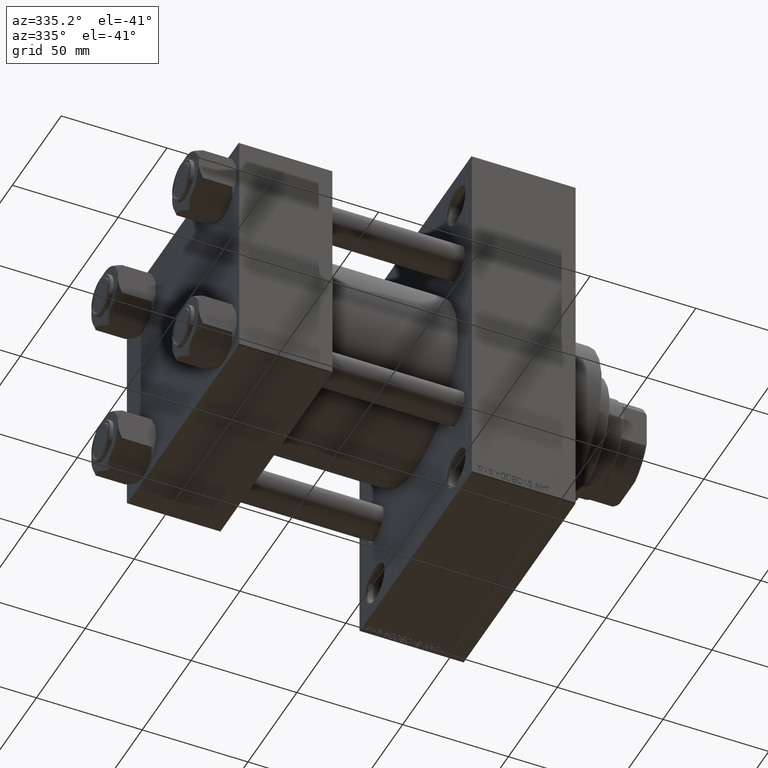
[diagram: clean part render]
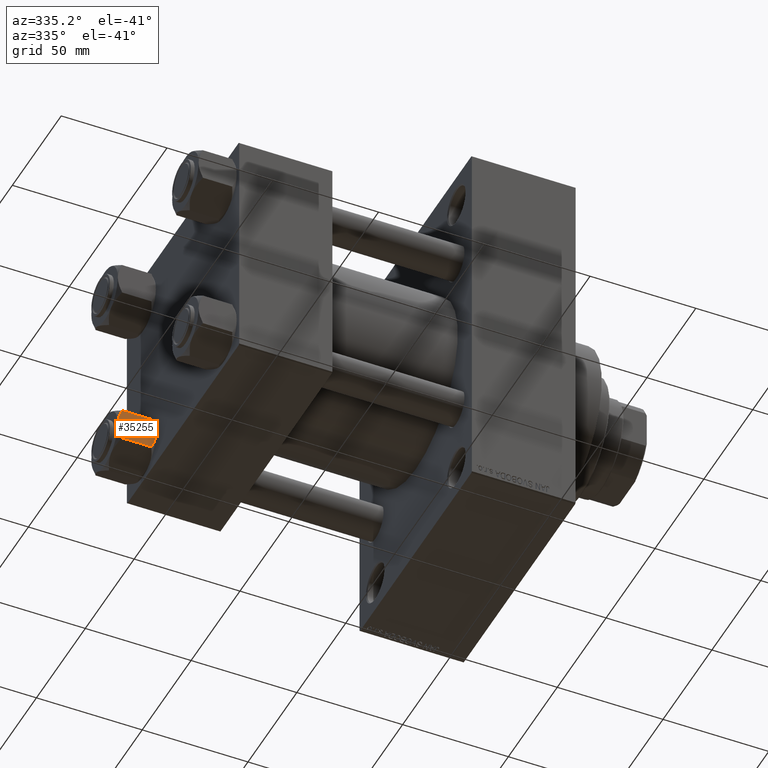
[diagram: same view with one face highlighted and labeled with its STEP entity id]
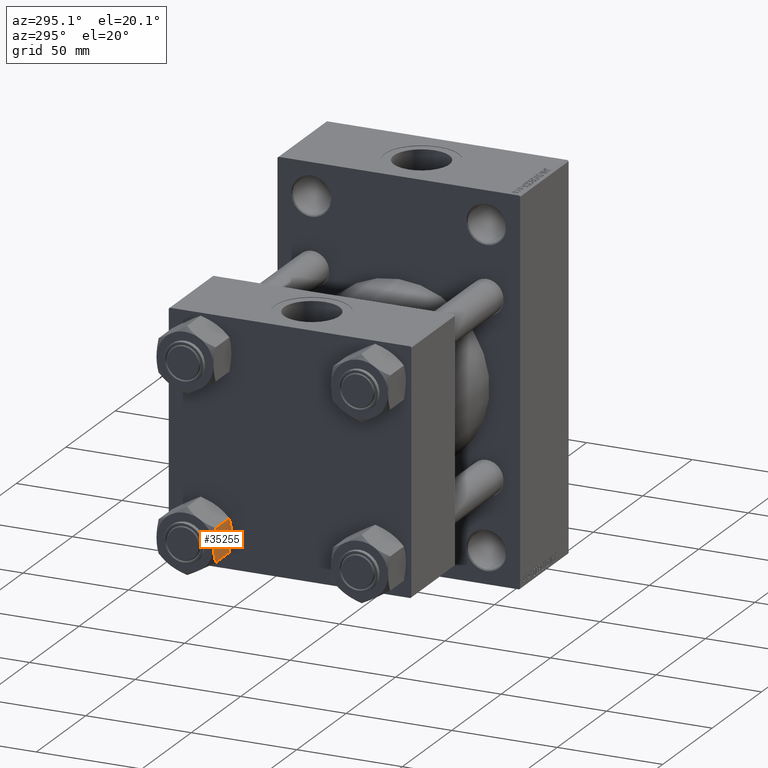
[diagram: same view with one face highlighted and labeled with its STEP entity id]
A machine part, auxiliary view. The second image highlights one B-rep face of the part: STEP entity #35255.
A second angle (auxiliary view) of the same face is appended — the face is thin or edge-on in the first view.
In plain terms, the highlighted planar face has unit normal (0, 1, 0).
Its self-contained STEP definition (entity closure, byte-faithful):
#437 = B_SPLINE_CURVE_WITH_KNOTS ( 'NONE', 3,
 ( #26120, #15482, #41312, #15258, #22494, #37213, #30214, #22986, #570, #33607, #32889, #43952 ),
 .UNSPECIFIED., .F., .F.,
 ( 4, 2, 2, 2, 2, 4 ),
 ( 0.02774433486126548498, 0.02873404020403552694, 0.02972374554680556544, 0.03170315623234564589, 0.03368256691788572288, 0.03566197760342580680 ),
 .UNSPECIFIED. ) ;
#534 = DIRECTION ( 'NONE',  ( 1.000000000000000000, 1.110578409716264860E-16, -0.000000000000000000 ) ) ;
#570 = CARTESIAN_POINT ( 'NONE',  ( -5.184073258379408244, -13.52731680711293194, -17.05185620934992130 ) ) ;
#822 = CARTESIAN_POINT ( 'NONE',  ( 6.422751913021838455, -13.52731680711293194, -1.436509110925895838 ) ) ;
#1526 = VERTEX_POINT ( 'NONE', #18166 ) ;
#1959 = ORIENTED_EDGE ( 'NONE', *, *, #11905, .F. ) ;
#2034 = EDGE_CURVE ( 'NONE', #28618, #33256, #31121, .T. ) ;
#2936 = B_SPLINE_CURVE_WITH_KNOTS ( 'NONE', 3,
 ( #3874, #14970, #44152, #29698, #18351, #25834, #28974, #43677 ),
 .UNSPECIFIED., .F., .F.,
 ( 4, 2, 2, 4 ),
 ( 0.01980594295952730483, 0.02179054093496184813, 0.02377513891039639490, 0.02774433486126548498 ),
 .UNSPECIFIED. ) ;
#3053 = CARTESIAN_POINT ( 'NONE',  ( 3.287826776903164827, -13.52731680711293016, -0.3804584453753316331 ) ) ;
#3274 = CARTESIAN_POINT ( 'NONE',  ( 7.810000000000007603, -13.52731680711293016, -16.00000000000000000 ) ) ;
#3413 = CARTESIAN_POINT ( 'NONE',  ( -7.030888348548076650, -13.52731680711293549, -1.709337883550297255 ) ) ;
#3652 = CARTESIAN_POINT ( 'NONE',  ( -5.189513245496340410, -13.52731680711292839, -0.9501108431732551152 ) ) ;
#3874 = CARTESIAN_POINT ( 'NONE',  ( 7.622943475354659881, -13.52731680711293194, -16.00000000000000000 ) ) ;
#3881 = CARTESIAN_POINT ( 'NONE',  ( -4.553769687922313736, -13.52731680711293194, -0.7327291995145115422 ) ) ;
#3946 = CARTESIAN_POINT ( 'NONE',  ( 7.622943475354659881, -13.52731680711293194, -2.000000000000000000 ) ) ;
#4436 = CARTESIAN_POINT ( 'NONE',  ( 5.184073258379416238, -13.52731680711293016, -0.9481437906500799206 ) ) ;
#4664 = VERTEX_POINT ( 'NONE', #42831 ) ;
#4914 = EDGE_CURVE ( 'NONE', #14597, #28618, #437, .T. ) ;
#5426 = VERTEX_POINT ( 'NONE', #16623 ) ;
#6681 = CARTESIAN_POINT ( 'NONE',  ( 1.502314598737159031E-15, -13.52731680711294082, 0.000000000000000000 ) ) ;
#6852 = CARTESIAN_POINT ( 'NONE',  ( 7.810000000000007603, -13.52731680711293016, -16.00000000000000000 ) ) ;
#7967 = DIRECTION ( 'NONE',  ( -0.000000000000000000, -0.000000000000000000, 1.000000000000000000 ) ) ;
#8015 = EDGE_CURVE ( 'NONE', #21444, #4664, #43386, .T. ) ;
#8050 = CARTESIAN_POINT ( 'NONE',  ( 1.663410456966175399, -13.52731680711292839, -0.09804949135698279306 ) ) ;
#11905 = EDGE_CURVE ( 'NONE', #5426, #27530, #12998, .T. ) ;
#12956 = ORIENTED_EDGE ( 'NONE', *, *, #4914, .F. ) ;
#12982 = CARTESIAN_POINT ( 'NONE',  ( 0.6693083573771220207, -13.52731680711293194, -0.01249333081107303380 ) ) ;
#12998 = B_SPLINE_CURVE_WITH_KNOTS ( 'NONE', 3,
 ( #36930, #3413, #47535, #3652, #3881, #28738, #43444, #18120 ),
 .UNSPECIFIED., .F., .F.,
 ( 4, 2, 2, 4 ),
 ( 0.01980594295952729789, 0.02179054093496184119, 0.02377513891039638450, 0.02774433486126547804 ),
 .UNSPECIFIED. ) ;
#13730 = ORIENTED_EDGE ( 'NONE', *, *, #17465, .F. ) ;
#14473 = DIRECTION ( 'NONE',  ( 1.000000000000000000, 1.110578409716264860E-16, -0.000000000000000000 ) ) ;
#14597 = VERTEX_POINT ( 'NONE', #28361 ) ;
#14911 = VECTOR ( 'NONE', #32236, 1000.000000000000000 ) ;
#14970 = CARTESIAN_POINT ( 'NONE',  ( 7.030888348548073097, -13.52731680711292661, -16.29066211644969897 ) ) ;
#15028 = ORIENTED_EDGE ( 'NONE', *, *, #16107, .F. ) ;
#15258 = CARTESIAN_POINT ( 'NONE',  ( -1.333889873825133909, -13.52731680711293016, -17.93843358996561221 ) ) ;
#15482 = CARTESIAN_POINT ( 'NONE',  ( -0.3330234424833800611, -13.52731680711293016, -18.00000000000001066 ) ) ;
#15751 = CARTESIAN_POINT ( 'NONE',  ( 4.557734399832427563, -13.52731680711293016, -0.7341470174115107827 ) ) ;
#16107 = EDGE_CURVE ( 'NONE', #1526, #14597, #2936, .T. ) ;
#16366 = VECTOR ( 'NONE', #14473, 1000.000000000000000 ) ;
#16623 = CARTESIAN_POINT ( 'NONE',  ( -7.622943475354656329, -13.52731680711293194, -2.000000000000000000 ) ) ;
#16815 = ORIENTED_EDGE ( 'NONE', *, *, #8015, .T. ) ;
#17465 = EDGE_CURVE ( 'NONE', #27530, #34381, #19605, .T. ) ;
#18120 = CARTESIAN_POINT ( 'NONE',  ( 1.502314598737159031E-15, -13.52731680711294082, 0.000000000000000000 ) ) ;
#18166 = CARTESIAN_POINT ( 'NONE',  ( 7.622943475354659881, -13.52731680711293194, -16.00000000000000000 ) ) ;
#18351 = CARTESIAN_POINT ( 'NONE',  ( 4.553769687922315512, -13.52731680711292839, -17.26727080048548757 ) ) ;
#19605 = B_SPLINE_CURVE_WITH_KNOTS ( 'NONE', 3,
 ( #6681, #31318, #12982, #42392, #8050, #41568, #3053, #15751, #4436, #822, #41335, #3946 ),
 .UNSPECIFIED., .F., .F.,
 ( 4, 2, 2, 2, 2, 4 ),
 ( 0.02774433486126547804, 0.02873404020403551654, 0.02972374554680555503, 0.03170315623234563895, 0.03368256691788571594, 0.03566197760342579293 ),
 .UNSPECIFIED. ) ;
#20938 = ORIENTED_EDGE ( 'NONE', *, *, #34827, .F. ) ;
#21105 = EDGE_LOOP ( 'NONE', ( #45036, #16815, #39814, #13730, #1959, #20938, #38594, #31782, #12956, #15028 ) ) ;
#21444 = VERTEX_POINT ( 'NONE', #6852 ) ;
#22188 = LINE ( 'NONE', #43656, #16366 ) ;
#22367 = CARTESIAN_POINT ( 'NONE',  ( -7.810000000000004050, -13.52731680711293194, -1.999999999999998224 ) ) ;
#22494 = CARTESIAN_POINT ( 'NONE',  ( -1.663410456966172069, -13.52731680711293016, -17.90195050864301507 ) ) ;
#22549 = CARTESIAN_POINT ( 'NONE',  ( 1.502314598737159031E-15, -13.52731680711294082, 0.000000000000000000 ) ) ;
#22866 = VECTOR ( 'NONE', #35683, 1000.000000000000000 ) ;
#22986 = CARTESIAN_POINT ( 'NONE',  ( -4.557734399832420458, -13.52731680711293016, -17.26585298258848766 ) ) ;
#23087 = DIRECTION ( 'NONE',  ( -1.000000000000000000, -1.110578409716264860E-16, 0.000000000000000000 ) ) ;
#23133 = VERTEX_POINT ( 'NONE', #22367 ) ;
#24688 = CARTESIAN_POINT ( 'NONE',  ( -7.622943475354656329, -13.52731680711293194, -16.00000000000000000 ) ) ;
#25834 = CARTESIAN_POINT ( 'NONE',  ( 2.638177715023115599, -13.52731680711293016, -17.79984593233012191 ) ) ;
#26082 = CARTESIAN_POINT ( 'NONE',  ( 7.810000000000007603, -13.52731680711293016, -1.999999999999998224 ) ) ;
#26120 = CARTESIAN_POINT ( 'NONE',  ( 1.502314598737159031E-15, -13.52731680711294082, -18.00000000000000000 ) ) ;
#27496 = LINE ( 'NONE', #34009, #40331 ) ;
#27530 = VERTEX_POINT ( 'NONE', #22549 ) ;
#28361 = CARTESIAN_POINT ( 'NONE',  ( 1.502314598737159031E-15, -13.52731680711294082, -18.00000000000000000 ) ) ;
#28618 = VERTEX_POINT ( 'NONE', #24688 ) ;
#28738 = CARTESIAN_POINT ( 'NONE',  ( -2.638177715023110714, -13.52731680711293549, -0.2001540676698777832 ) ) ;
#28974 = CARTESIAN_POINT ( 'NONE',  ( 1.335584685993420395, -13.52731680711293016, -18.00000000000000711 ) ) ;
#29416 = AXIS2_PLACEMENT_3D ( 'NONE', #38049, #45030, #23087 ) ;
#29463 = LINE ( 'NONE', #26082, #43248 ) ;
#29698 = CARTESIAN_POINT ( 'NONE',  ( 5.189513245496343075, -13.52731680711293016, -17.04988915682674389 ) ) ;
#30214 = CARTESIAN_POINT ( 'NONE',  ( -3.287826776903156833, -13.52731680711293194, -17.61954155462467142 ) ) ;
#31121 = LINE ( 'NONE', #45819, #40389 ) ;
#31318 = CARTESIAN_POINT ( 'NONE',  ( 0.3330234424833848350, -13.52731680711292661, 7.814831850486578560E-15 ) ) ;
#31782 = ORIENTED_EDGE ( 'NONE', *, *, #2034, .F. ) ;
#32236 = DIRECTION ( 'NONE',  ( -1.000000000000000000, -1.110578409716264860E-16, 0.000000000000000000 ) ) ;
#32889 = CARTESIAN_POINT ( 'NONE',  ( -7.030203932307593995, -13.52731680711293372, -16.29099812210860065 ) ) ;
#32951 = LINE ( 'NONE', #3274, #14911 ) ;
#33256 = VERTEX_POINT ( 'NONE', #33696 ) ;
#33607 = CARTESIAN_POINT ( 'NONE',  ( -6.422751913021831349, -13.52731680711293016, -16.56349088907410305 ) ) ;
#33696 = CARTESIAN_POINT ( 'NONE',  ( -7.810000000000004050, -13.52731680711293194, -16.00000000000000000 ) ) ;
#34009 = CARTESIAN_POINT ( 'NONE',  ( -7.810000000000004050, -13.52731680711293194, -18.00000000000000000 ) ) ;
#34381 = VERTEX_POINT ( 'NONE', #45431 ) ;
#34827 = EDGE_CURVE ( 'NONE', #23133, #5426, #22188, .T. ) ;
#35255 = ADVANCED_FACE ( 'NONE', ( #41423 ), #37327, .F. ) ;
#35633 = EDGE_CURVE ( 'NONE', #34381, #4664, #29463, .T. ) ;
#35683 = DIRECTION ( 'NONE',  ( -0.000000000000000000, -0.000000000000000000, 1.000000000000000000 ) ) ;
#36930 = CARTESIAN_POINT ( 'NONE',  ( -7.622943475354656329, -13.52731680711293194, -2.000000000000000000 ) ) ;
#37213 = CARTESIAN_POINT ( 'NONE',  ( -2.644243758052989612, -13.52731680711293016, -17.75917188019760218 ) ) ;
#37327 = PLANE ( 'NONE',  #29416 ) ;
#38049 = CARTESIAN_POINT ( 'NONE',  ( 7.810000000000007603, -13.52731680711293016, -18.00000000000000000 ) ) ;
#38594 = ORIENTED_EDGE ( 'NONE', *, *, #43304, .F. ) ;
#39776 = CARTESIAN_POINT ( 'NONE',  ( 7.810000000000007603, -13.52731680711293016, -18.00000000000000000 ) ) ;
#39814 = ORIENTED_EDGE ( 'NONE', *, *, #35633, .F. ) ;
#40331 = VECTOR ( 'NONE', #7967, 1000.000000000000000 ) ;
#40389 = VECTOR ( 'NONE', #42204, 1000.000000000000000 ) ;
#41312 = CARTESIAN_POINT ( 'NONE',  ( -0.6693083573771198003, -13.52731680711293194, -17.98750666918892804 ) ) ;
#41335 = CARTESIAN_POINT ( 'NONE',  ( 7.030203932307596659, -13.52731680711293016, -1.709001877891391796 ) ) ;
#41423 = FACE_OUTER_BOUND ( 'NONE', #21105, .T. ) ;
#41568 = CARTESIAN_POINT ( 'NONE',  ( 2.644243758052994053, -13.52731680711293016, -0.2408281198023913272 ) ) ;
#42204 = DIRECTION ( 'NONE',  ( -1.000000000000000000, -1.110578409716264860E-16, 0.000000000000000000 ) ) ;
#42392 = CARTESIAN_POINT ( 'NONE',  ( 1.333889873825135242, -13.52731680711293016, -0.06156641003438559356 ) ) ;
#42831 = CARTESIAN_POINT ( 'NONE',  ( 7.810000000000007603, -13.52731680711293016, -1.999999999999998224 ) ) ;
#43248 = VECTOR ( 'NONE', #534, 1000.000000000000000 ) ;
#43304 = EDGE_CURVE ( 'NONE', #33256, #23133, #27496, .T. ) ;
#43386 = LINE ( 'NONE', #39776, #22866 ) ;
#43444 = CARTESIAN_POINT ( 'NONE',  ( -1.335584685993417509, -13.52731680711293372, 7.711387951803151865E-15 ) ) ;
#43656 = CARTESIAN_POINT ( 'NONE',  ( 7.810000000000007603, -13.52731680711293016, -1.999999999999998224 ) ) ;
#43677 = CARTESIAN_POINT ( 'NONE',  ( 1.502314598737159031E-15, -13.52731680711294082, -18.00000000000000000 ) ) ;
#43951 = EDGE_CURVE ( 'NONE', #21444, #1526, #32951, .T. ) ;
#43952 = CARTESIAN_POINT ( 'NONE',  ( -7.622943475354656329, -13.52731680711293194, -16.00000000000000000 ) ) ;
#44152 = CARTESIAN_POINT ( 'NONE',  ( 6.427364677720483144, -13.52731680711293194, -16.56149306284486755 ) ) ;
#45030 = DIRECTION ( 'NONE',  ( -1.110578409716264860E-16, 1.000000000000000000, 0.000000000000000000 ) ) ;
#45036 = ORIENTED_EDGE ( 'NONE', *, *, #43951, .F. ) ;
#45431 = CARTESIAN_POINT ( 'NONE',  ( 7.622943475354659881, -13.52731680711293194, -2.000000000000000000 ) ) ;
#45819 = CARTESIAN_POINT ( 'NONE',  ( 7.810000000000007603, -13.52731680711293016, -16.00000000000000000 ) ) ;
#47535 = CARTESIAN_POINT ( 'NONE',  ( -6.427364677720484920, -13.52731680711293372, -1.438506937155137999 ) ) ;